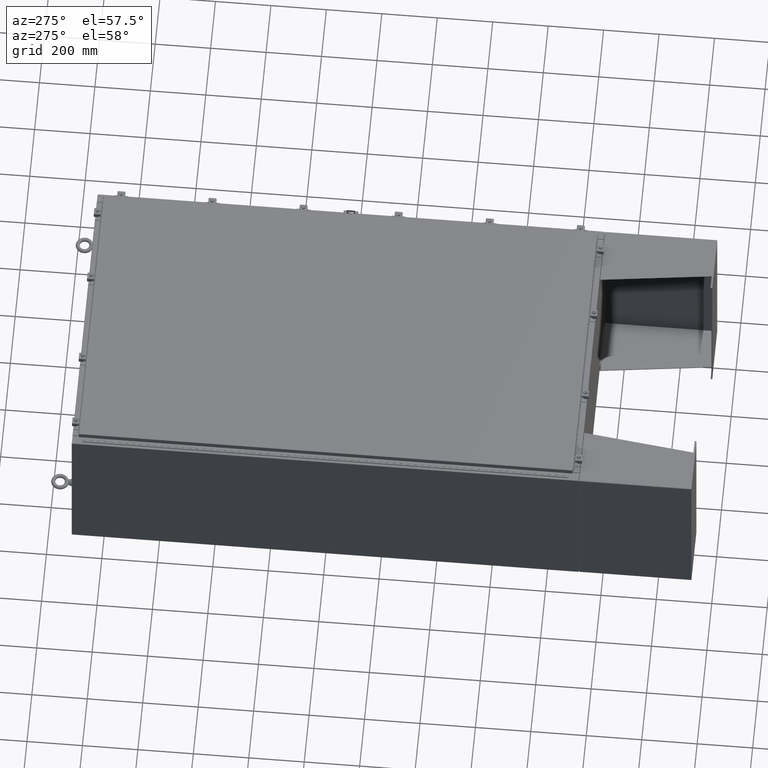
[diagram: clean part render]
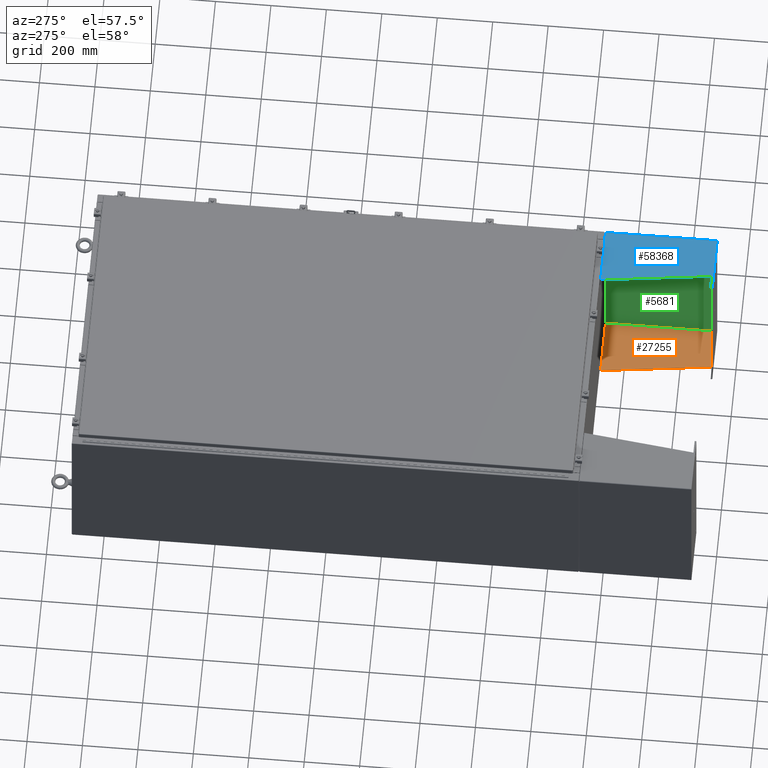
[diagram: same view with three faces highlighted in distinct colors, each labeled with its STEP entity id]
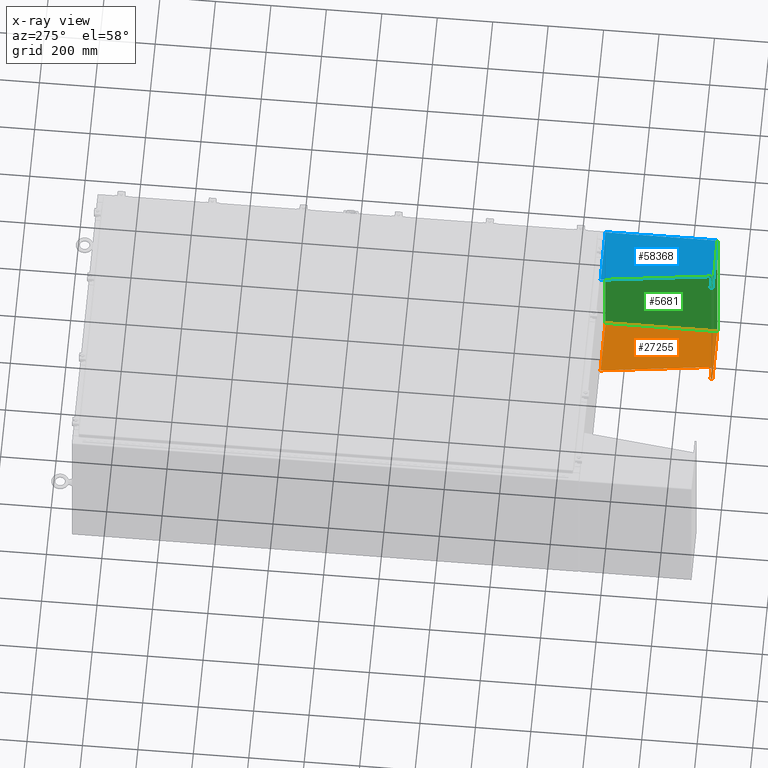
[diagram: x-ray of the same camera — body ghosted, the three highlighted faces saturated]
A machine part, auxiliary view with three faces highlighted in distinct colors.
The next image is the same camera in x-ray (body ghosted, the three faces saturated) — at least one of them is partly hidden behind the body in this view.
Their STEP definitions:

[orange] entity #27255 — the highlighted planar face has unit normal (-0, 0, 1).
#1143 = LINE ( 'NONE', #47824, #8723 ) ;
#1595 = EDGE_CURVE ( 'NONE', #40781, #14862, #72052, .T. ) ;
#2420 = DIRECTION ( 'NONE',  ( 0.0000000000000000000, 0.0000000000000000000, -1.000000000000000000 ) ) ;
#2853 = VERTEX_POINT ( 'NONE', #15600 ) ;
#4496 = LINE ( 'NONE', #9034, #63789 ) ;
#4506 = VECTOR ( 'NONE', #74964, 39.37007874015748100 ) ;
#7278 = VECTOR ( 'NONE', #2420, 39.37007874015748100 ) ;
#8723 = VECTOR ( 'NONE', #53465, 39.37007874015748100 ) ;
#8778 = CARTESIAN_POINT ( 'NONE',  ( -11.89600000000001500, 7.857000000000001100, 8.001000000000003000 ) ) ;
#9034 = CARTESIAN_POINT ( 'NONE',  ( -11.89600000000002900, 8.000000000000001800, 8.001000000000003000 ) ) ;
#9307 = EDGE_CURVE ( 'NONE', #63842, #44470, #15499, .T. ) ;
#10541 = ORIENTED_EDGE ( 'NONE', *, *, #50445, .F. ) ;
#12934 = DIRECTION ( 'NONE',  ( 3.550958521948298200E-015, 0.0000000000000000000, -1.000000000000000000 ) ) ;
#14862 = VERTEX_POINT ( 'NONE', #73274 ) ;
#15123 = DIRECTION ( 'NONE',  ( -0.0000000000000000000, 1.000000000000000000, -0.0000000000000000000 ) ) ;
#15499 = LINE ( 'NONE', #33907, #45119 ) ;
#15600 = CARTESIAN_POINT ( 'NONE',  ( -11.89600000000002900, -7.999999999999999100, 8.001000000000003000 ) ) ;
#15920 = CARTESIAN_POINT ( 'NONE',  ( -11.89600000000000100, -7.999999999999999100, 0.03900000000000250500 ) ) ;
#17389 = VECTOR ( 'NONE', #57673, 39.37007874015748100 ) ;
#18681 = LINE ( 'NONE', #33781, #4506 ) ;
#18771 = ORIENTED_EDGE ( 'NONE', *, *, #1595, .F. ) ;
#21166 = ORIENTED_EDGE ( 'NONE', *, *, #70231, .F. ) ;
#22904 = ORIENTED_EDGE ( 'NONE', *, *, #9307, .F. ) ;
#27255 = ADVANCED_FACE ( 'NONE', ( #76475 ), #42491, .T. ) ;
#27589 = EDGE_CURVE ( 'NONE', #44470, #40781, #48850, .T. ) ;
#28305 = CARTESIAN_POINT ( 'NONE',  ( -11.89600000000001500, 7.857000000000001100, 8.001000000000003000 ) ) ;
#33781 = CARTESIAN_POINT ( 'NONE',  ( -11.89600000000000100, 8.000000000000001800, 0.03900000000000250500 ) ) ;
#33907 = CARTESIAN_POINT ( 'NONE',  ( -11.89600000000002900, -7.749999999999999100, 8.000999999999994100 ) ) ;
#34405 = AXIS2_PLACEMENT_3D ( 'NONE', #36511, #48469, #12934 ) ;
#36511 = CARTESIAN_POINT ( 'NONE',  ( -11.89600000000002900, 8.000000000000001800, 8.001000000000003000 ) ) ;
#40781 = VERTEX_POINT ( 'NONE', #8778 ) ;
#40885 = DIRECTION ( 'NONE',  ( 3.550958521948298200E-015, 0.0000000000000000000, -1.000000000000000000 ) ) ;
#42491 = PLANE ( 'NONE',  #34405 ) ;
#44020 = VERTEX_POINT ( 'NONE', #15920 ) ;
#44470 = VERTEX_POINT ( 'NONE', #62060 ) ;
#45119 = VECTOR ( 'NONE', #40885, 39.37007874015748100 ) ;
#45760 = CARTESIAN_POINT ( 'NONE',  ( -11.89600000000002900, -7.749999999999999100, 8.000999999999994100 ) ) ;
#45846 = CARTESIAN_POINT ( 'NONE',  ( -11.89600000000001700, -7.749999999999999100, 6.052216497445917800 ) ) ;
#47824 = CARTESIAN_POINT ( 'NONE',  ( -11.89600000000002900, -7.999999999999999100, 8.001000000000003000 ) ) ;
#48469 = DIRECTION ( 'NONE',  ( 1.000000000000000000, 0.0000000000000000000, 3.550958521948298200E-015 ) ) ;
#48850 = LINE ( 'NONE', #45846, #17389 ) ;
#49239 = ORIENTED_EDGE ( 'NONE', *, *, #27589, .F. ) ;
#50445 = EDGE_CURVE ( 'NONE', #44020, #2853, #1143, .T. ) ;
#53465 = DIRECTION ( 'NONE',  ( -3.550958521948298200E-015, -0.0000000000000000000, 1.000000000000000000 ) ) ;
#54044 = EDGE_CURVE ( 'NONE', #2853, #63842, #4496, .T. ) ;
#57673 = DIRECTION ( 'NONE',  ( -4.399772607369800400E-016, 0.9922942345449394800, 0.1239038017531047900 ) ) ;
#62060 = CARTESIAN_POINT ( 'NONE',  ( -11.89600000000002200, -7.749999999999999100, 6.052216497445917800 ) ) ;
#63789 = VECTOR ( 'NONE', #15123, 39.37007874015748100 ) ;
#63842 = VERTEX_POINT ( 'NONE', #45760 ) ;
#70231 = EDGE_CURVE ( 'NONE', #14862, #44020, #18681, .T. ) ;
#70983 = ORIENTED_EDGE ( 'NONE', *, *, #54044, .F. ) ;
#71786 = EDGE_LOOP ( 'NONE', ( #49239, #22904, #70983, #10541, #21166, #18771 ) ) ;
#72052 = LINE ( 'NONE', #28305, #7278 ) ;
#73274 = CARTESIAN_POINT ( 'NONE',  ( -11.89600000000000100, 7.857000000000002000, 0.03900000000000031900 ) ) ;
#74964 = DIRECTION ( 'NONE',  ( 0.0000000000000000000, -1.000000000000000000, 0.0000000000000000000 ) ) ;
#76475 = FACE_OUTER_BOUND ( 'NONE', #71786, .T. ) ;

[blue] entity #58368 — the highlighted planar face has unit normal (-0, -0, -1).
#371 = LINE ( 'NONE', #38222, #14569 ) ;
#2348 = DIRECTION ( 'NONE',  ( -3.550958521948298200E-015, -0.0000000000000000000, -1.000000000000000000 ) ) ;
#4736 = EDGE_LOOP ( 'NONE', ( #52378, #66912, #75873, #72258, #21570, #25352 ) ) ;
#5492 = EDGE_CURVE ( 'NONE', #47461, #35715, #7506, .T. ) ;
#7506 = LINE ( 'NONE', #62020, #37235 ) ;
#8782 = AXIS2_PLACEMENT_3D ( 'NONE', #65338, #30126, #71278 ) ;
#13393 = LINE ( 'NONE', #45923, #44943 ) ;
#14569 = VECTOR ( 'NONE', #32317, 39.37007874015748100 ) ;
#18320 = LINE ( 'NONE', #73110, #30271 ) ;
#21439 = CARTESIAN_POINT ( 'NONE',  ( 12.00000000000001200, 7.857000000000001100, 8.001000000000011900 ) ) ;
#21570 = ORIENTED_EDGE ( 'NONE', *, *, #32561, .T. ) ;
#21582 = VERTEX_POINT ( 'NONE', #21439 ) ;
#22652 = DIRECTION ( 'NONE',  ( -3.550958521948298200E-015, 0.0000000000000000000, -1.000000000000000000 ) ) ;
#23287 = EDGE_CURVE ( 'NONE', #73974, #35715, #18320, .T. ) ;
#25352 = ORIENTED_EDGE ( 'NONE', *, *, #63706, .F. ) ;
#29756 = DIRECTION ( 'NONE',  ( 0.0000000000000000000, -1.000000000000000000, 0.0000000000000000000 ) ) ;
#30126 = DIRECTION ( 'NONE',  ( -1.000000000000000000, 0.0000000000000000000, 3.550958521948298200E-015 ) ) ;
#30271 = VECTOR ( 'NONE', #22652, 39.37007874015748100 ) ;
#30568 = VECTOR ( 'NONE', #2348, 39.37007874015748100 ) ;
#30742 = EDGE_CURVE ( 'NONE', #49452, #73974, #60856, .T. ) ;
#31315 = VECTOR ( 'NONE', #29756, 39.37007874015748100 ) ;
#32317 = DIRECTION ( 'NONE',  ( 4.399772607369800400E-016, 0.9922942345449394800, 0.1239038017531047900 ) ) ;
#32561 = EDGE_CURVE ( 'NONE', #47461, #21582, #13393, .T. ) ;
#34206 = DIRECTION ( 'NONE',  ( 0.0000000000000000000, 0.0000000000000000000, 1.000000000000000000 ) ) ;
#35715 = VERTEX_POINT ( 'NONE', #56350 ) ;
#36885 = CARTESIAN_POINT ( 'NONE',  ( 12.00000000000002500, -7.749999999999999100, 8.001000000000011900 ) ) ;
#37235 = VECTOR ( 'NONE', #71224, 39.37007874015748100 ) ;
#38222 = CARTESIAN_POINT ( 'NONE',  ( 12.00000000000001800, -7.749999999999999100, 6.052216497445930300 ) ) ;
#41458 = VERTEX_POINT ( 'NONE', #50469 ) ;
#44017 = CARTESIAN_POINT ( 'NONE',  ( 12.00000000000002500, -7.999999999999999100, 8.001000000000015400 ) ) ;
#44943 = VECTOR ( 'NONE', #34206, 39.37007874015748100 ) ;
#45923 = CARTESIAN_POINT ( 'NONE',  ( 12.00000000000001200, 7.857000000000001100, 0.03900000000001561900 ) ) ;
#46330 = LINE ( 'NONE', #55642, #30568 ) ;
#47461 = VERTEX_POINT ( 'NONE', #60425 ) ;
#49257 = FACE_OUTER_BOUND ( 'NONE', #4736, .T. ) ;
#49452 = VERTEX_POINT ( 'NONE', #36885 ) ;
#50469 = CARTESIAN_POINT ( 'NONE',  ( 12.00000000000001800, -7.749999999999999100, 6.052216497445930300 ) ) ;
#52378 = ORIENTED_EDGE ( 'NONE', *, *, #54599, .F. ) ;
#54599 = EDGE_CURVE ( 'NONE', #49452, #41458, #46330, .T. ) ;
#55642 = CARTESIAN_POINT ( 'NONE',  ( 12.00000000000002500, -7.749999999999999100, 8.001000000000015400 ) ) ;
#56350 = CARTESIAN_POINT ( 'NONE',  ( 11.99999999999999600, -7.999999999999993800, 0.03900000000000139500 ) ) ;
#58368 = ADVANCED_FACE ( 'NONE', ( #49257 ), #59536, .F. ) ;
#59536 = PLANE ( 'NONE',  #8782 ) ;
#60425 = CARTESIAN_POINT ( 'NONE',  ( 12.00000000000000900, 7.857000000000001100, 0.03900000000001561900 ) ) ;
#60856 = LINE ( 'NONE', #64983, #31315 ) ;
#62020 = CARTESIAN_POINT ( 'NONE',  ( 11.99999999999999600, -7.999999999999999100, 0.03900000000001561900 ) ) ;
#63706 = EDGE_CURVE ( 'NONE', #41458, #21582, #371, .T. ) ;
#64983 = CARTESIAN_POINT ( 'NONE',  ( 12.00000000000002500, -7.999999999999999100, 8.001000000000015400 ) ) ;
#65338 = CARTESIAN_POINT ( 'NONE',  ( 12.00000000000002500, -7.999999999999999100, 8.001000000000015400 ) ) ;
#66912 = ORIENTED_EDGE ( 'NONE', *, *, #30742, .T. ) ;
#71224 = DIRECTION ( 'NONE',  ( -0.0000000000000000000, -1.000000000000000000, 0.0000000000000000000 ) ) ;
#71278 = DIRECTION ( 'NONE',  ( 3.550958521948298200E-015, 0.0000000000000000000, 1.000000000000000000 ) ) ;
#72258 = ORIENTED_EDGE ( 'NONE', *, *, #5492, .F. ) ;
#73110 = CARTESIAN_POINT ( 'NONE',  ( 12.00000000000002500, -7.999999999999999100, 8.001000000000015400 ) ) ;
#73974 = VERTEX_POINT ( 'NONE', #44017 ) ;
#75873 = ORIENTED_EDGE ( 'NONE', *, *, #23287, .T. ) ;

[green] entity #5681 — the highlighted planar face has unit normal (1, 0, -0).
#3575 = EDGE_CURVE ( 'NONE', #27795, #65742, #55194, .T. ) ;
#5431 = VERTEX_POINT ( 'NONE', #67604 ) ;
#5681 = ADVANCED_FACE ( 'NONE', ( #28039 ), #13074, .F. ) ;
#5922 = LINE ( 'NONE', #32800, #51502 ) ;
#6851 = CARTESIAN_POINT ( 'NONE',  ( 11.99999999999998900, 8.000000000000001800, 0.0000000000000000000 ) ) ;
#10030 = EDGE_CURVE ( 'NONE', #40434, #65742, #5922, .T. ) ;
#11869 = VECTOR ( 'NONE', #66054, 39.37007874015748100 ) ;
#12311 = CARTESIAN_POINT ( 'NONE',  ( -11.85700000000000100, -8.000000000000000000, 1.365923996832131600E-016 ) ) ;
#13074 = PLANE ( 'NONE',  #16735 ) ;
#13819 = LINE ( 'NONE', #24902, #11869 ) ;
#13848 = LINE ( 'NONE', #23257, #59150 ) ;
#16422 = DIRECTION ( 'NONE',  ( 0.0000000000000000000, 0.0000000000000000000, -1.000000000000000000 ) ) ;
#16735 = AXIS2_PLACEMENT_3D ( 'NONE', #6851, #16422, #62156 ) ;
#21885 = VECTOR ( 'NONE', #74860, 39.37007874015748100 ) ;
#22920 = CARTESIAN_POINT ( 'NONE',  ( 11.85699999999999800, 7.857000000000001100, 1.365923996832131600E-016 ) ) ;
#23257 = CARTESIAN_POINT ( 'NONE',  ( -11.85700000000000100, 7.857000000000001100, 1.365923996832131600E-016 ) ) ;
#24902 = CARTESIAN_POINT ( 'NONE',  ( -11.85700000000000100, -7.999999999999999100, 1.365923996832131600E-016 ) ) ;
#25833 = EDGE_CURVE ( 'NONE', #27795, #5431, #13819, .T. ) ;
#27795 = VERTEX_POINT ( 'NONE', #12311 ) ;
#28039 = FACE_OUTER_BOUND ( 'NONE', #37876, .T. ) ;
#29302 = DIRECTION ( 'NONE',  ( -0.0000000000000000000, -1.000000000000000000, -0.0000000000000000000 ) ) ;
#32800 = CARTESIAN_POINT ( 'NONE',  ( 11.85699999999999800, 8.000000000000001800, 1.365923996832131600E-016 ) ) ;
#37876 = EDGE_LOOP ( 'NONE', ( #62950, #58879, #67449, #67756 ) ) ;
#40434 = VERTEX_POINT ( 'NONE', #22920 ) ;
#51502 = VECTOR ( 'NONE', #29302, 39.37007874015748100 ) ;
#51784 = CARTESIAN_POINT ( 'NONE',  ( 11.85699999999999800, -7.999999999999997300, 1.365923996832131600E-016 ) ) ;
#54938 = EDGE_CURVE ( 'NONE', #5431, #40434, #13848, .T. ) ;
#55194 = LINE ( 'NONE', #67632, #21885 ) ;
#58879 = ORIENTED_EDGE ( 'NONE', *, *, #25833, .F. ) ;
#59150 = VECTOR ( 'NONE', #70366, 39.37007874015748100 ) ;
#62156 = DIRECTION ( 'NONE',  ( -1.000000000000000000, 0.0000000000000000000, -0.0000000000000000000 ) ) ;
#62950 = ORIENTED_EDGE ( 'NONE', *, *, #54938, .F. ) ;
#65742 = VERTEX_POINT ( 'NONE', #51784 ) ;
#66054 = DIRECTION ( 'NONE',  ( -0.0000000000000000000, 1.000000000000000000, -0.0000000000000000000 ) ) ;
#67449 = ORIENTED_EDGE ( 'NONE', *, *, #3575, .T. ) ;
#67604 = CARTESIAN_POINT ( 'NONE',  ( -11.85700000000000100, 7.857000000000001100, 1.365923996832131600E-016 ) ) ;
#67632 = CARTESIAN_POINT ( 'NONE',  ( -12.00000000000000400, -7.999999999999999100, 0.0000000000000000000 ) ) ;
#67756 = ORIENTED_EDGE ( 'NONE', *, *, #10030, .F. ) ;
#70366 = DIRECTION ( 'NONE',  ( 1.000000000000000000, 0.0000000000000000000, 0.0000000000000000000 ) ) ;
#74860 = DIRECTION ( 'NONE',  ( 1.000000000000000000, 0.0000000000000000000, 0.0000000000000000000 ) ) ;